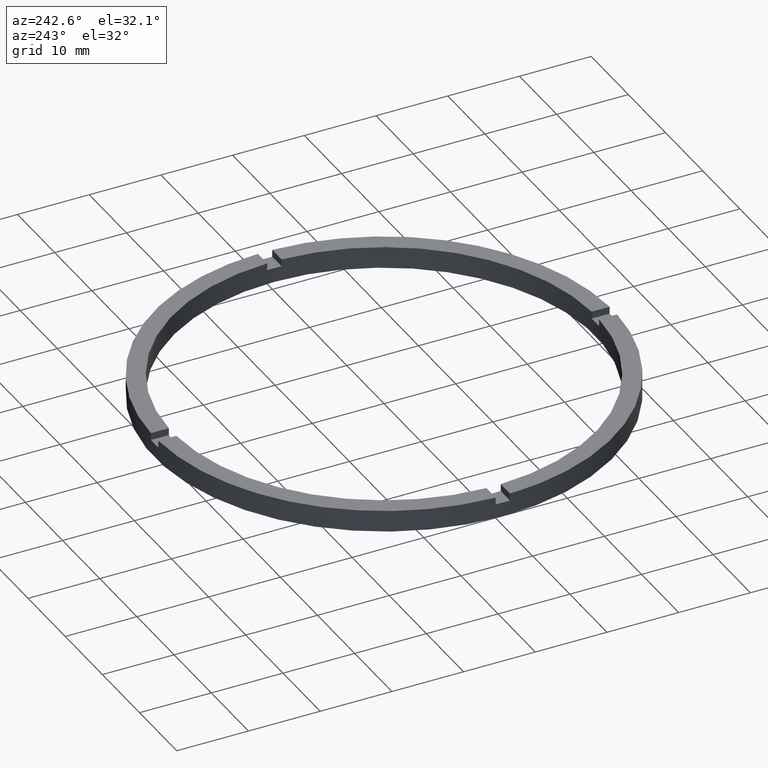
[diagram: clean part render]
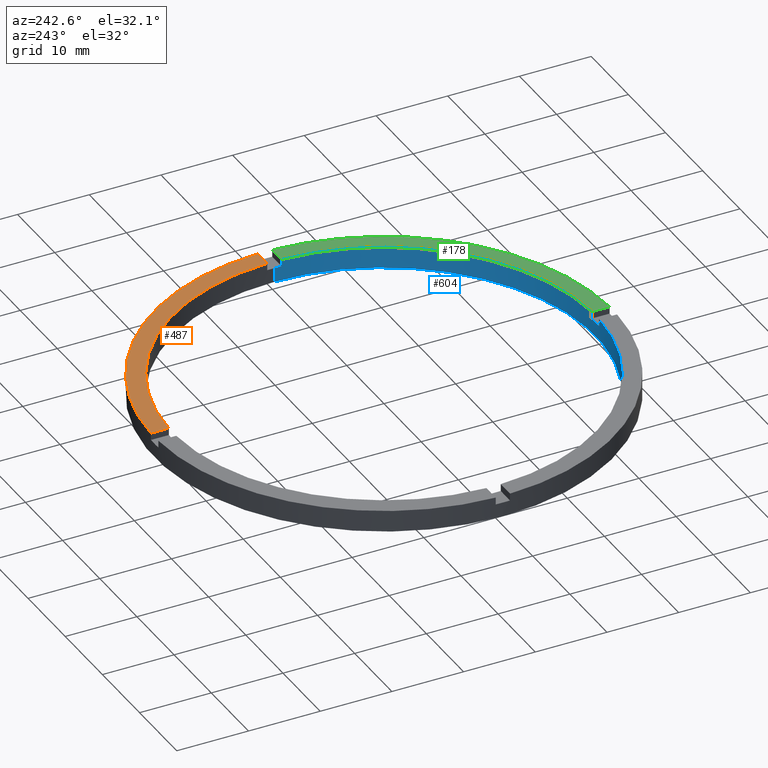
[diagram: same view with three faces highlighted in distinct colors, each labeled with its STEP entity id]
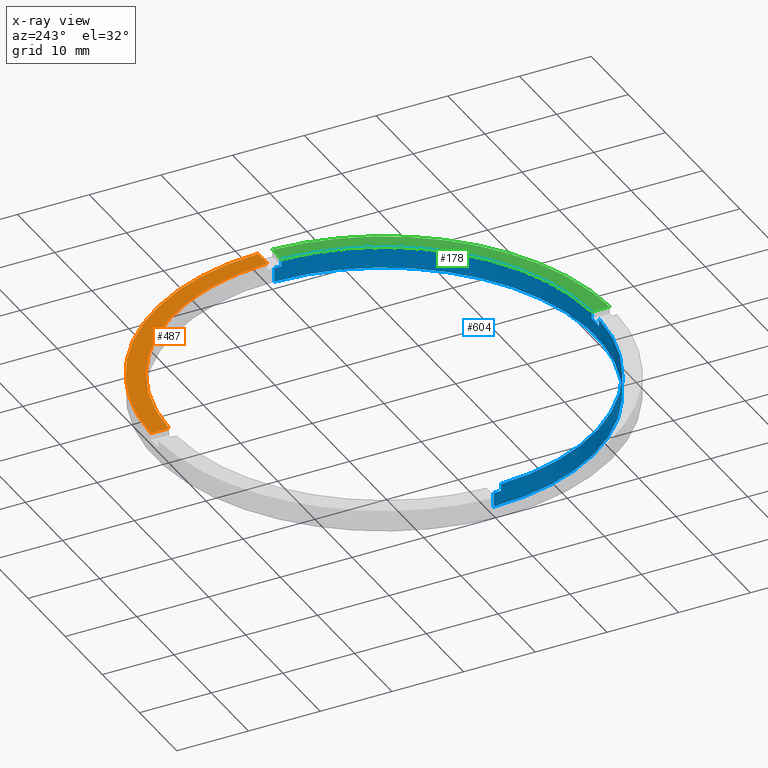
[diagram: x-ray of the same camera — body ghosted, the three highlighted faces saturated]
A machine part, auxiliary view with three faces highlighted in distinct colors.
The next image is the same camera in x-ray (body ghosted, the three faces saturated) — at least one of them is partly hidden behind the body in this view.
Their STEP definitions:

[orange] entity #487 — the highlighted planar face has unit normal (0, 0, 1).
#27 = AXIS2_PLACEMENT_3D ( 'NONE', #194, #377, #628 ) ;
#29 = CIRCLE ( 'NONE', #270, 29.50000000000000355 ) ;
#40 = FACE_OUTER_BOUND ( 'NONE', #480, .T. ) ;
#43 = CARTESIAN_POINT ( 'NONE',  ( 0.9999999999999754641, 29.48304597561114093, 3.000000000000000000 ) ) ;
#55 = DIRECTION ( 'NONE',  ( 1.000000000000000000, 0.000000000000000000, 0.000000000000000000 ) ) ;
#83 = CARTESIAN_POINT ( 'NONE',  ( 0.9999999999999754641, 22.00000000000000000, 3.000000000000000000 ) ) ;
#161 = PLANE ( 'NONE',  #27 ) ;
#172 = EDGE_CURVE ( 'NONE', #408, #686, #625, .T. ) ;
#179 = DIRECTION ( 'NONE',  ( 0.000000000000000000, 0.000000000000000000, 1.000000000000000000 ) ) ;
#188 = AXIS2_PLACEMENT_3D ( 'NONE', #654, #179, #267 ) ;
#194 = CARTESIAN_POINT ( 'NONE',  ( 0.000000000000000000, 0.000000000000000000, 3.000000000000000000 ) ) ;
#204 = VERTEX_POINT ( 'NONE', #350 ) ;
#267 = DIRECTION ( 'NONE',  ( 1.000000000000000000, 0.000000000000000000, 0.000000000000000000 ) ) ;
#270 = AXIS2_PLACEMENT_3D ( 'NONE', #347, #757, #55 ) ;
#276 = LINE ( 'NONE', #83, #287 ) ;
#287 = VECTOR ( 'NONE', #622, 1000.000000000000000 ) ;
#296 = VECTOR ( 'NONE', #440, 1000.000000000000000 ) ;
#347 = CARTESIAN_POINT ( 'NONE',  ( 0.000000000000000000, 0.000000000000000000, 3.000000000000000000 ) ) ;
#350 = CARTESIAN_POINT ( 'NONE',  ( 29.48304597561114448, 0.9999999999998412381, 3.000000000000000000 ) ) ;
#369 = EDGE_CURVE ( 'NONE', #408, #204, #498, .T. ) ;
#377 = DIRECTION ( 'NONE',  ( 0.000000000000000000, 0.000000000000000000, 1.000000000000000000 ) ) ;
#395 = ORIENTED_EDGE ( 'NONE', *, *, #543, .F. ) ;
#408 = VERTEX_POINT ( 'NONE', #532 ) ;
#430 = ORIENTED_EDGE ( 'NONE', *, *, #662, .F. ) ;
#440 = DIRECTION ( 'NONE',  ( -1.000000000000000000, -6.505213034913022906E-17, -0.000000000000000000 ) ) ;
#480 = EDGE_LOOP ( 'NONE', ( #430, #395, #733, #695 ) ) ;
#487 = ADVANCED_FACE ( 'NONE', ( #40 ), #161, .T. ) ;
#498 = LINE ( 'NONE', #546, #296 ) ;
#532 = CARTESIAN_POINT ( 'NONE',  ( 31.98437118343895591, 0.9999999999998414602, 3.000000000000000000 ) ) ;
#543 = EDGE_CURVE ( 'NONE', #204, #762, #29, .T. ) ;
#546 = CARTESIAN_POINT ( 'NONE',  ( 21.99999999999999645, 0.9999999999998409050, 3.000000000000000000 ) ) ;
#622 = DIRECTION ( 'NONE',  ( 0.000000000000000000, 1.000000000000000000, 0.000000000000000000 ) ) ;
#625 = CIRCLE ( 'NONE', #188, 32.00000000000000000 ) ;
#628 = DIRECTION ( 'NONE',  ( 1.000000000000000000, 0.000000000000000000, -0.000000000000000000 ) ) ;
#654 = CARTESIAN_POINT ( 'NONE',  ( 0.000000000000000000, 0.000000000000000000, 3.000000000000000000 ) ) ;
#662 = EDGE_CURVE ( 'NONE', #762, #686, #276, .T. ) ;
#678 = CARTESIAN_POINT ( 'NONE',  ( 0.9999999999999754641, 31.98437118343894880, 3.000000000000000000 ) ) ;
#686 = VERTEX_POINT ( 'NONE', #678 ) ;
#695 = ORIENTED_EDGE ( 'NONE', *, *, #172, .T. ) ;
#733 = ORIENTED_EDGE ( 'NONE', *, *, #369, .F. ) ;
#757 = DIRECTION ( 'NONE',  ( 0.000000000000000000, 0.000000000000000000, 1.000000000000000000 ) ) ;
#762 = VERTEX_POINT ( 'NONE', #43 ) ;

[blue] entity #604 — the highlighted cylindrical surface (partial cylindrical patch) has radius 29.5 mm, axis along (-0, -0, -1).
#2 = LINE ( 'NONE', #253, #783 ) ;
#22 = DIRECTION ( 'NONE',  ( -0.000000000000000000, -0.000000000000000000, -1.000000000000000000 ) ) ;
#26 = FACE_OUTER_BOUND ( 'NONE', #214, .T. ) ;
#46 = CARTESIAN_POINT ( 'NONE',  ( 0.9999999999998386846, -29.48304597561114448, 2.000000000000000000 ) ) ;
#50 = CARTESIAN_POINT ( 'NONE',  ( 29.50000000000000355, 3.612708057484692393E-15, 2.000000000000000000 ) ) ;
#52 = CIRCLE ( 'NONE', #58, 29.50000000000000355 ) ;
#58 = AXIS2_PLACEMENT_3D ( 'NONE', #82, #720, #192 ) ;
#59 = AXIS2_PLACEMENT_3D ( 'NONE', #688, #596, #766 ) ;
#63 = EDGE_CURVE ( 'NONE', #523, #689, #697, .T. ) ;
#69 = DIRECTION ( 'NONE',  ( 0.000000000000000000, 0.000000000000000000, 1.000000000000000000 ) ) ;
#72 = DIRECTION ( 'NONE',  ( 1.000000000000000000, 0.000000000000000000, 0.000000000000000000 ) ) ;
#75 = EDGE_CURVE ( 'NONE', #743, #715, #147, .T. ) ;
#82 = CARTESIAN_POINT ( 'NONE',  ( 0.000000000000000000, 0.000000000000000000, 3.000000000000000000 ) ) ;
#90 = DIRECTION ( 'NONE',  ( -0.000000000000000000, -0.000000000000000000, -1.000000000000000000 ) ) ;
#96 = EDGE_CURVE ( 'NONE', #698, #689, #439, .T. ) ;
#98 = VECTOR ( 'NONE', #117, 1000.000000000000000 ) ;
#100 = CIRCLE ( 'NONE', #643, 29.50000000000000355 ) ;
#105 = LINE ( 'NONE', #615, #98 ) ;
#107 = DIRECTION ( 'NONE',  ( 1.000000000000000000, 0.000000000000000000, 0.000000000000000000 ) ) ;
#117 = DIRECTION ( 'NONE',  ( -0.000000000000000000, -0.000000000000000000, -1.000000000000000000 ) ) ;
#136 = EDGE_CURVE ( 'NONE', #544, #523, #105, .T. ) ;
#140 = VERTEX_POINT ( 'NONE', #337 ) ;
#147 = CIRCLE ( 'NONE', #602, 29.50000000000000355 ) ;
#149 = VERTEX_POINT ( 'NONE', #612 ) ;
#150 = DIRECTION ( 'NONE',  ( -0.000000000000000000, -0.000000000000000000, -1.000000000000000000 ) ) ;
#156 = CARTESIAN_POINT ( 'NONE',  ( 0.000000000000000000, 0.000000000000000000, 2.000000000000000000 ) ) ;
#170 = ORIENTED_EDGE ( 'NONE', *, *, #75, .T. ) ;
#176 = EDGE_CURVE ( 'NONE', #186, #140, #100, .T. ) ;
#185 = VECTOR ( 'NONE', #22, 1000.000000000000000 ) ;
#186 = VERTEX_POINT ( 'NONE', #771 ) ;
#192 = DIRECTION ( 'NONE',  ( 1.000000000000000000, 0.000000000000000000, 0.000000000000000000 ) ) ;
#208 = CIRCLE ( 'NONE', #339, 29.50000000000000355 ) ;
#213 = CARTESIAN_POINT ( 'NONE',  ( 29.48304597561113383, -1.000000000000158762, 3.000000000000000000 ) ) ;
#214 = EDGE_LOOP ( 'NONE', ( #438, #731, #222, #226, #420, #704, #650, #470, #170, #228, #663, #692 ) ) ;
#222 = ORIENTED_EDGE ( 'NONE', *, *, #63, .F. ) ;
#226 = ORIENTED_EDGE ( 'NONE', *, *, #136, .F. ) ;
#228 = ORIENTED_EDGE ( 'NONE', *, *, #614, .F. ) ;
#233 = AXIS2_PLACEMENT_3D ( 'NONE', #344, #431, #521 ) ;
#236 = VECTOR ( 'NONE', #298, 1000.000000000000000 ) ;
#253 = CARTESIAN_POINT ( 'NONE',  ( -29.48304597561113738, -1.000000000000025313, 3.000000000000000000 ) ) ;
#272 = VERTEX_POINT ( 'NONE', #557 ) ;
#273 = CIRCLE ( 'NONE', #59, 29.50000000000000355 ) ;
#282 = CYLINDRICAL_SURFACE ( 'NONE', #412, 29.50000000000000355 ) ;
#286 = EDGE_CURVE ( 'NONE', #544, #684, #208, .T. ) ;
#289 = CARTESIAN_POINT ( 'NONE',  ( -29.50000000000000355, 0.000000000000000000, 0.000000000000000000 ) ) ;
#293 = CARTESIAN_POINT ( 'NONE',  ( 0.000000000000000000, 0.000000000000000000, 3.000000000000000000 ) ) ;
#298 = DIRECTION ( 'NONE',  ( 0.000000000000000000, 0.000000000000000000, 1.000000000000000000 ) ) ;
#300 = CARTESIAN_POINT ( 'NONE',  ( 0.000000000000000000, 0.000000000000000000, 2.000000000000000000 ) ) ;
#303 = LINE ( 'NONE', #384, #553 ) ;
#337 = CARTESIAN_POINT ( 'NONE',  ( -1.000000000000161426, -29.48304597561113383, 3.000000000000000000 ) ) ;
#339 = AXIS2_PLACEMENT_3D ( 'NONE', #156, #69, #107 ) ;
#344 = CARTESIAN_POINT ( 'NONE',  ( 0.000000000000000000, 0.000000000000000000, 0.000000000000000000 ) ) ;
#351 = EDGE_CURVE ( 'NONE', #272, #482, #52, .T. ) ;
#358 = EDGE_CURVE ( 'NONE', #149, #482, #758, .T. ) ;
#376 = DIRECTION ( 'NONE',  ( -0.000000000000000000, 0.000000000000000000, 1.000000000000000000 ) ) ;
#384 = CARTESIAN_POINT ( 'NONE',  ( 0.9999999999998386846, -29.48304597561114448, 3.000000000000000000 ) ) ;
#388 = DIRECTION ( 'NONE',  ( 0.000000000000000000, 0.000000000000000000, 1.000000000000000000 ) ) ;
#393 = CARTESIAN_POINT ( 'NONE',  ( 29.48304597561113383, -1.000000000000158762, 3.000000000000000000 ) ) ;
#412 = AXIS2_PLACEMENT_3D ( 'NONE', #293, #90, #433 ) ;
#414 = CARTESIAN_POINT ( 'NONE',  ( 29.50000000000000355, 3.612708057484692393E-15, 3.000000000000000000 ) ) ;
#420 = ORIENTED_EDGE ( 'NONE', *, *, #286, .T. ) ;
#431 = DIRECTION ( 'NONE',  ( 0.000000000000000000, 0.000000000000000000, 1.000000000000000000 ) ) ;
#433 = DIRECTION ( 'NONE',  ( -1.000000000000000000, 0.000000000000000000, 0.000000000000000000 ) ) ;
#438 = ORIENTED_EDGE ( 'NONE', *, *, #580, .T. ) ;
#439 = LINE ( 'NONE', #414, #185 ) ;
#469 = EDGE_CURVE ( 'NONE', #186, #684, #2, .T. ) ;
#470 = ORIENTED_EDGE ( 'NONE', *, *, #531, .F. ) ;
#474 = DIRECTION ( 'NONE',  ( -0.000000000000000000, -0.000000000000000000, -1.000000000000000000 ) ) ;
#482 = VERTEX_POINT ( 'NONE', #393 ) ;
#512 = CARTESIAN_POINT ( 'NONE',  ( 29.50000000000000355, 3.612708057484692393E-15, 0.000000000000000000 ) ) ;
#521 = DIRECTION ( 'NONE',  ( 1.000000000000000000, 0.000000000000000000, 0.000000000000000000 ) ) ;
#523 = VERTEX_POINT ( 'NONE', #289 ) ;
#527 = LINE ( 'NONE', #594, #549 ) ;
#531 = EDGE_CURVE ( 'NONE', #743, #140, #527, .T. ) ;
#544 = VERTEX_POINT ( 'NONE', #679 ) ;
#549 = VECTOR ( 'NONE', #588, 1000.000000000000000 ) ;
#553 = VECTOR ( 'NONE', #150, 1000.000000000000000 ) ;
#557 = CARTESIAN_POINT ( 'NONE',  ( 0.9999999999998386846, -29.48304597561114448, 3.000000000000000000 ) ) ;
#580 = EDGE_CURVE ( 'NONE', #149, #698, #273, .T. ) ;
#588 = DIRECTION ( 'NONE',  ( 0.000000000000000000, 0.000000000000000000, 1.000000000000000000 ) ) ;
#592 = DIRECTION ( 'NONE',  ( 1.000000000000000000, 0.000000000000000000, 0.000000000000000000 ) ) ;
#594 = CARTESIAN_POINT ( 'NONE',  ( -1.000000000000161426, -29.48304597561113383, 3.000000000000000000 ) ) ;
#596 = DIRECTION ( 'NONE',  ( 0.000000000000000000, 0.000000000000000000, 1.000000000000000000 ) ) ;
#602 = AXIS2_PLACEMENT_3D ( 'NONE', #300, #376, #592 ) ;
#604 = ADVANCED_FACE ( 'NONE', ( #26 ), #282, .F. ) ;
#612 = CARTESIAN_POINT ( 'NONE',  ( 29.48304597561113383, -1.000000000000158762, 2.000000000000000000 ) ) ;
#614 = EDGE_CURVE ( 'NONE', #272, #715, #303, .T. ) ;
#615 = CARTESIAN_POINT ( 'NONE',  ( -29.50000000000000355, 0.000000000000000000, 3.000000000000000000 ) ) ;
#638 = CARTESIAN_POINT ( 'NONE',  ( 0.000000000000000000, 0.000000000000000000, 3.000000000000000000 ) ) ;
#643 = AXIS2_PLACEMENT_3D ( 'NONE', #638, #388, #72 ) ;
#650 = ORIENTED_EDGE ( 'NONE', *, *, #176, .T. ) ;
#663 = ORIENTED_EDGE ( 'NONE', *, *, #351, .T. ) ;
#666 = CARTESIAN_POINT ( 'NONE',  ( -1.000000000000161426, -29.48304597561113383, 2.000000000000000000 ) ) ;
#673 = CARTESIAN_POINT ( 'NONE',  ( -29.48304597561113738, -1.000000000000025313, 2.000000000000000000 ) ) ;
#679 = CARTESIAN_POINT ( 'NONE',  ( -29.50000000000000355, 0.000000000000000000, 2.000000000000000000 ) ) ;
#684 = VERTEX_POINT ( 'NONE', #673 ) ;
#688 = CARTESIAN_POINT ( 'NONE',  ( 0.000000000000000000, 0.000000000000000000, 2.000000000000000000 ) ) ;
#689 = VERTEX_POINT ( 'NONE', #512 ) ;
#692 = ORIENTED_EDGE ( 'NONE', *, *, #358, .F. ) ;
#697 = CIRCLE ( 'NONE', #233, 29.50000000000000355 ) ;
#698 = VERTEX_POINT ( 'NONE', #50 ) ;
#704 = ORIENTED_EDGE ( 'NONE', *, *, #469, .F. ) ;
#715 = VERTEX_POINT ( 'NONE', #46 ) ;
#720 = DIRECTION ( 'NONE',  ( 0.000000000000000000, 0.000000000000000000, 1.000000000000000000 ) ) ;
#731 = ORIENTED_EDGE ( 'NONE', *, *, #96, .T. ) ;
#743 = VERTEX_POINT ( 'NONE', #666 ) ;
#758 = LINE ( 'NONE', #213, #236 ) ;
#766 = DIRECTION ( 'NONE',  ( 1.000000000000000000, 0.000000000000000000, 0.000000000000000000 ) ) ;
#771 = CARTESIAN_POINT ( 'NONE',  ( -29.48304597561113738, -1.000000000000025313, 3.000000000000000000 ) ) ;
#783 = VECTOR ( 'NONE', #474, 1000.000000000000000 ) ;

[green] entity #178 — the highlighted planar face has unit normal (0, 0, 1).
#5 = VECTOR ( 'NONE', #86, 1000.000000000000000 ) ;
#18 = LINE ( 'NONE', #432, #5 ) ;
#52 = CIRCLE ( 'NONE', #58, 29.50000000000000355 ) ;
#58 = AXIS2_PLACEMENT_3D ( 'NONE', #82, #720, #192 ) ;
#82 = CARTESIAN_POINT ( 'NONE',  ( 0.000000000000000000, 0.000000000000000000, 3.000000000000000000 ) ) ;
#86 = DIRECTION ( 'NONE',  ( 1.000000000000000000, 6.505213034913022906E-17, 0.000000000000000000 ) ) ;
#94 = CARTESIAN_POINT ( 'NONE',  ( 0.000000000000000000, 0.000000000000000000, 3.000000000000000000 ) ) ;
#145 = CARTESIAN_POINT ( 'NONE',  ( 0.000000000000000000, 0.000000000000000000, 3.000000000000000000 ) ) ;
#166 = VERTEX_POINT ( 'NONE', #738 ) ;
#178 = ADVANCED_FACE ( 'NONE', ( #360 ), #565, .T. ) ;
#192 = DIRECTION ( 'NONE',  ( 1.000000000000000000, 0.000000000000000000, 0.000000000000000000 ) ) ;
#193 = CARTESIAN_POINT ( 'NONE',  ( 0.9999999999998389066, -31.98437118343895591, 3.000000000000000000 ) ) ;
#209 = VECTOR ( 'NONE', #394, 1000.000000000000000 ) ;
#244 = ORIENTED_EDGE ( 'NONE', *, *, #310, .F. ) ;
#247 = ORIENTED_EDGE ( 'NONE', *, *, #421, .T. ) ;
#272 = VERTEX_POINT ( 'NONE', #557 ) ;
#310 = EDGE_CURVE ( 'NONE', #648, #272, #727, .T. ) ;
#313 = AXIS2_PLACEMENT_3D ( 'NONE', #94, #595, #764 ) ;
#332 = AXIS2_PLACEMENT_3D ( 'NONE', #145, #690, #403 ) ;
#351 = EDGE_CURVE ( 'NONE', #272, #482, #52, .T. ) ;
#355 = CARTESIAN_POINT ( 'NONE',  ( 0.9999999999998375744, -22.00000000000017764, 3.000000000000000000 ) ) ;
#360 = FACE_OUTER_BOUND ( 'NONE', #760, .T. ) ;
#393 = CARTESIAN_POINT ( 'NONE',  ( 29.48304597561113383, -1.000000000000158762, 3.000000000000000000 ) ) ;
#394 = DIRECTION ( 'NONE',  ( -1.301042606982605074E-16, 1.000000000000000000, -0.000000000000000000 ) ) ;
#403 = DIRECTION ( 'NONE',  ( 1.000000000000000000, 0.000000000000000000, -0.000000000000000000 ) ) ;
#421 = EDGE_CURVE ( 'NONE', #648, #166, #540, .T. ) ;
#432 = CARTESIAN_POINT ( 'NONE',  ( 21.99999999999999645, -1.000000000000159206, 3.000000000000000000 ) ) ;
#460 = ORIENTED_EDGE ( 'NONE', *, *, #351, .F. ) ;
#482 = VERTEX_POINT ( 'NONE', #393 ) ;
#540 = CIRCLE ( 'NONE', #313, 32.00000000000000000 ) ;
#557 = CARTESIAN_POINT ( 'NONE',  ( 0.9999999999998386846, -29.48304597561114448, 3.000000000000000000 ) ) ;
#565 = PLANE ( 'NONE',  #332 ) ;
#595 = DIRECTION ( 'NONE',  ( 0.000000000000000000, 0.000000000000000000, 1.000000000000000000 ) ) ;
#648 = VERTEX_POINT ( 'NONE', #193 ) ;
#670 = ORIENTED_EDGE ( 'NONE', *, *, #732, .F. ) ;
#690 = DIRECTION ( 'NONE',  ( 0.000000000000000000, 0.000000000000000000, 1.000000000000000000 ) ) ;
#720 = DIRECTION ( 'NONE',  ( 0.000000000000000000, 0.000000000000000000, 1.000000000000000000 ) ) ;
#727 = LINE ( 'NONE', #355, #209 ) ;
#732 = EDGE_CURVE ( 'NONE', #482, #166, #18, .T. ) ;
#738 = CARTESIAN_POINT ( 'NONE',  ( 31.98437118343894170, -1.000000000000158540, 3.000000000000000000 ) ) ;
#760 = EDGE_LOOP ( 'NONE', ( #670, #460, #244, #247 ) ) ;
#764 = DIRECTION ( 'NONE',  ( 1.000000000000000000, 0.000000000000000000, 0.000000000000000000 ) ) ;